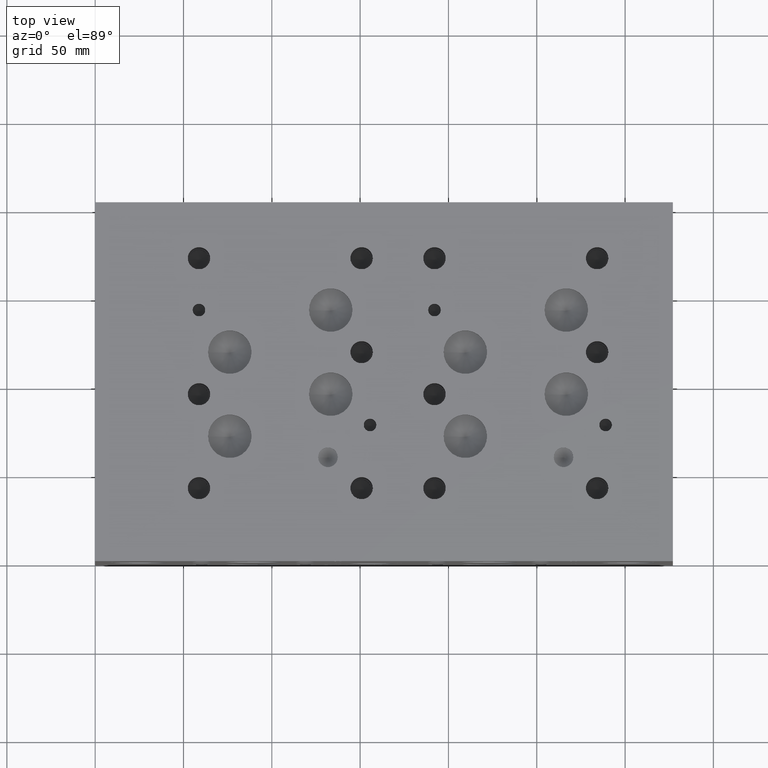
[diagram: clean part render]
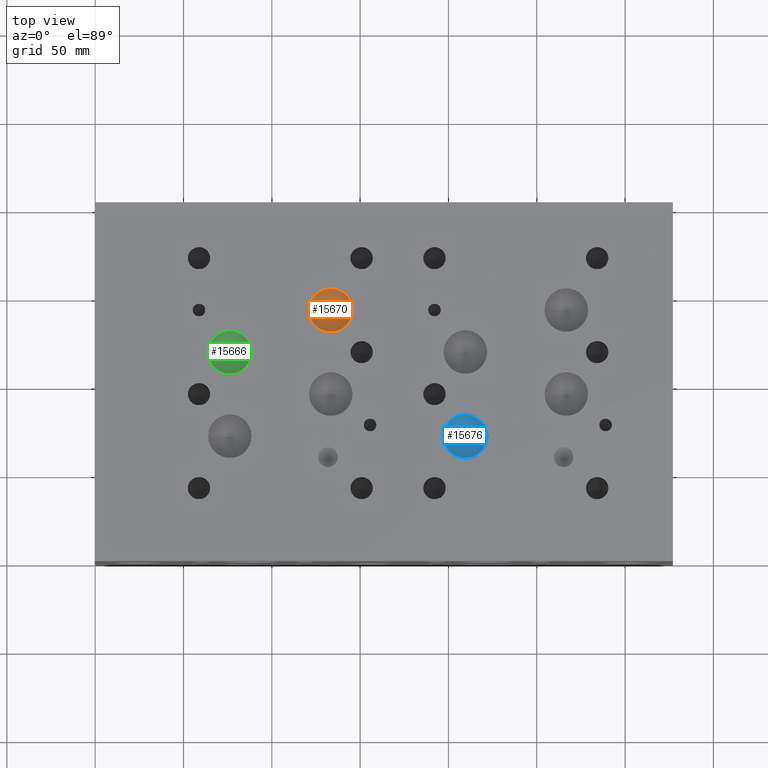
[diagram: same view with three faces highlighted in distinct colors, each labeled with its STEP entity id]
A machine part, top view with three faces highlighted in distinct colors.
Their STEP definitions:

[orange] entity #15670 — the highlighted conical surface has half-angle 60 deg.
#81=CONICAL_SURFACE('',#16730,6.15315,1.0471975511966);
#636=CIRCLE('',#16731,12.3063);
#637=CIRCLE('',#16732,12.3063);
#2179=FACE_OUTER_BOUND('',#3138,.T.);
#3138=EDGE_LOOP('',(#13606,#13607,#13608,#13609));
#4529=LINE('',#26969,#5863);
#5863=VECTOR('',#20154,6.15315);
#7324=VERTEX_POINT('',#26965);
#7325=VERTEX_POINT('',#26966);
#7326=VERTEX_POINT('',#26968);
#9467=EDGE_CURVE('',#7324,#7325,#636,.T.);
#9468=EDGE_CURVE('',#7325,#7326,#4529,.T.);
#9469=EDGE_CURVE('',#7325,#7324,#637,.T.);
#13606=ORIENTED_EDGE('',*,*,#9467,.T.);
#13607=ORIENTED_EDGE('',*,*,#9468,.T.);
#13608=ORIENTED_EDGE('',*,*,#9468,.F.);
#13609=ORIENTED_EDGE('',*,*,#9469,.T.);
#15670=ADVANCED_FACE('',(#2179),#81,.F.);
#16730=AXIS2_PLACEMENT_3D('',#26964,#20150,#20151);
#16731=AXIS2_PLACEMENT_3D('',#26967,#20152,#20153);
#16732=AXIS2_PLACEMENT_3D('',#26970,#20155,#20156);
#20150=DIRECTION('center_axis',(0.,0.,1.));
#20151=DIRECTION('ref_axis',(1.,0.,0.));
#20152=DIRECTION('center_axis',(0.,0.,1.));
#20153=DIRECTION('ref_axis',(1.,0.,0.));
#20154=DIRECTION('',(0.866025403784439,1.06057523872491E-16,-0.5));
#20155=DIRECTION('center_axis',(0.,0.,1.));
#20156=DIRECTION('ref_axis',(1.,0.,0.));
#26964=CARTESIAN_POINT('Origin',(133.35,142.0876,141.742427191136));
#26965=CARTESIAN_POINT('',(145.6563,142.0876,145.29495));
#26966=CARTESIAN_POINT('',(121.0437,142.0876,145.29495));
#26967=CARTESIAN_POINT('Origin',(133.35,142.0876,145.29495));
#26968=CARTESIAN_POINT('',(133.35,142.0876,138.189904382272));
#26969=CARTESIAN_POINT('',(127.19685,142.0876,141.742427191136));
#26970=CARTESIAN_POINT('Origin',(133.35,142.0876,145.29495));

[blue] entity #15676 — the highlighted conical surface has half-angle 60 deg.
#84=CONICAL_SURFACE('',#16748,6.15315,1.0471975511966);
#648=CIRCLE('',#16749,12.3063);
#649=CIRCLE('',#16750,12.3063);
#2185=FACE_OUTER_BOUND('',#3144,.T.);
#3144=EDGE_LOOP('',(#13636,#13637,#13638,#13639));
#4535=LINE('',#27008,#5869);
#5869=VECTOR('',#20196,6.15315);
#7339=VERTEX_POINT('',#27004);
#7340=VERTEX_POINT('',#27005);
#7341=VERTEX_POINT('',#27007);
#9485=EDGE_CURVE('',#7339,#7340,#648,.T.);
#9486=EDGE_CURVE('',#7340,#7341,#4535,.T.);
#9487=EDGE_CURVE('',#7340,#7339,#649,.T.);
#13636=ORIENTED_EDGE('',*,*,#9485,.T.);
#13637=ORIENTED_EDGE('',*,*,#9486,.T.);
#13638=ORIENTED_EDGE('',*,*,#9486,.F.);
#13639=ORIENTED_EDGE('',*,*,#9487,.T.);
#15676=ADVANCED_FACE('',(#2185),#84,.F.);
#16748=AXIS2_PLACEMENT_3D('',#27003,#20192,#20193);
#16749=AXIS2_PLACEMENT_3D('',#27006,#20194,#20195);
#16750=AXIS2_PLACEMENT_3D('',#27009,#20197,#20198);
#20192=DIRECTION('center_axis',(0.,0.,1.));
#20193=DIRECTION('ref_axis',(1.,0.,0.));
#20194=DIRECTION('center_axis',(0.,0.,1.));
#20195=DIRECTION('ref_axis',(1.,0.,0.));
#20196=DIRECTION('',(0.866025403784439,1.06057523872491E-16,-0.5));
#20197=DIRECTION('center_axis',(0.,0.,1.));
#20198=DIRECTION('ref_axis',(1.,0.,0.));
#27003=CARTESIAN_POINT('Origin',(209.5373,70.6374,141.742427191136));
#27004=CARTESIAN_POINT('',(221.8436,70.6374,145.29495));
#27005=CARTESIAN_POINT('',(197.231,70.6374,145.29495));
#27006=CARTESIAN_POINT('Origin',(209.5373,70.6374,145.29495));
#27007=CARTESIAN_POINT('',(209.5373,70.6374,138.189904382272));
#27008=CARTESIAN_POINT('',(203.38415,70.6374,141.742427191136));
#27009=CARTESIAN_POINT('Origin',(209.5373,70.6374,145.29495));

[green] entity #15666 — the highlighted conical surface has half-angle 60 deg.
#79=CONICAL_SURFACE('',#16718,6.15315,1.0471975511966);
#628=CIRCLE('',#16719,12.3063);
#629=CIRCLE('',#16720,12.3063);
#2175=FACE_OUTER_BOUND('',#3134,.T.);
#3134=EDGE_LOOP('',(#13586,#13587,#13588,#13589));
#4525=LINE('',#26943,#5859);
#5859=VECTOR('',#20126,6.15315);
#7314=VERTEX_POINT('',#26939);
#7315=VERTEX_POINT('',#26940);
#7316=VERTEX_POINT('',#26942);
#9455=EDGE_CURVE('',#7314,#7315,#628,.T.);
#9456=EDGE_CURVE('',#7315,#7316,#4525,.T.);
#9457=EDGE_CURVE('',#7315,#7314,#629,.T.);
#13586=ORIENTED_EDGE('',*,*,#9455,.T.);
#13587=ORIENTED_EDGE('',*,*,#9456,.T.);
#13588=ORIENTED_EDGE('',*,*,#9456,.F.);
#13589=ORIENTED_EDGE('',*,*,#9457,.T.);
#15666=ADVANCED_FACE('',(#2175),#79,.F.);
#16718=AXIS2_PLACEMENT_3D('',#26938,#20122,#20123);
#16719=AXIS2_PLACEMENT_3D('',#26941,#20124,#20125);
#16720=AXIS2_PLACEMENT_3D('',#26944,#20127,#20128);
#20122=DIRECTION('center_axis',(0.,0.,1.));
#20123=DIRECTION('ref_axis',(1.,0.,0.));
#20124=DIRECTION('center_axis',(0.,0.,1.));
#20125=DIRECTION('ref_axis',(1.,0.,0.));
#20126=DIRECTION('',(0.866025403784439,1.06057523872491E-16,-0.5));
#20127=DIRECTION('center_axis',(0.,0.,1.));
#20128=DIRECTION('ref_axis',(1.,0.,0.));
#26938=CARTESIAN_POINT('Origin',(76.2,118.2878,141.742427191136));
#26939=CARTESIAN_POINT('',(88.5063,118.2878,145.29495));
#26940=CARTESIAN_POINT('',(63.8937,118.2878,145.29495));
#26941=CARTESIAN_POINT('Origin',(76.2,118.2878,145.29495));
#26942=CARTESIAN_POINT('',(76.2,118.2878,138.189904382272));
#26943=CARTESIAN_POINT('',(70.04685,118.2878,141.742427191136));
#26944=CARTESIAN_POINT('Origin',(76.2,118.2878,145.29495));